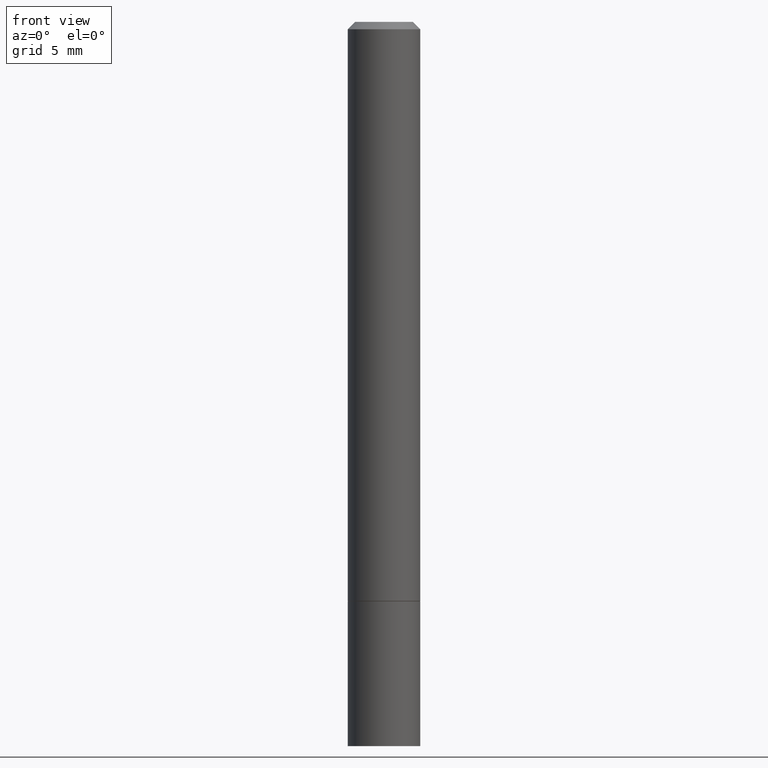
[diagram: clean part render]
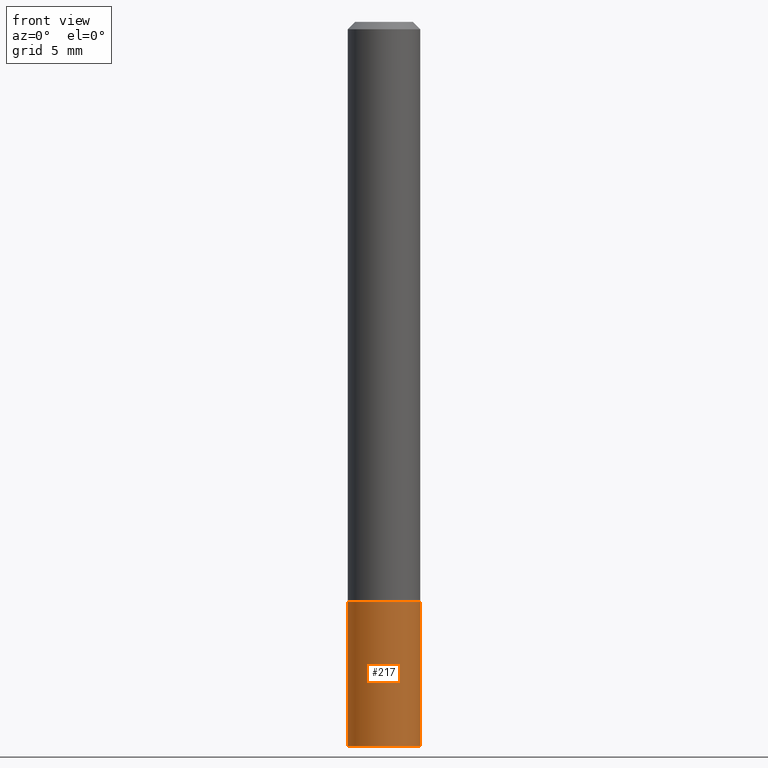
[diagram: same view with one face highlighted and labeled with its STEP entity id]
A machine part, front view. The second image highlights one B-rep face of the part: STEP entity #217.
In plain terms, the highlighted cylindrical surface (edge-blend (fillet) strip) has radius 2.5006 mm, axis along (-0, 0, 1).
Its self-contained STEP definition (entity closure, byte-faithful):
#8 = ORIENTED_EDGE ( 'NONE', *, *, #245, .F. ) ;
#11 = EDGE_CURVE ( 'NONE', #60, #78, #219, .T. ) ;
#40 = AXIS2_PLACEMENT_3D ( 'NONE', #143, #80, #173 ) ;
#44 = AXIS2_PLACEMENT_3D ( 'NONE', #65, #161, #100 ) ;
#59 = DIRECTION ( 'NONE',  ( -2.445468806185136877E-29, 3.491481338843145188E-15, 1.000000000000000000 ) ) ;
#60 = VERTEX_POINT ( 'NONE', #267 ) ;
#65 = CARTESIAN_POINT ( 'NONE',  ( 0.000000000000000000, 0.000000000000000000, 0.000000000000000000 ) ) ;
#71 = FACE_OUTER_BOUND ( 'NONE', #179, .T. ) ;
#76 = VECTOR ( 'NONE', #59, 39.37007874015748143 ) ;
#78 = VERTEX_POINT ( 'NONE', #85 ) ;
#80 = DIRECTION ( 'NONE',  ( -2.445468806185136597E-29, 3.491481338843145583E-15, 1.000000000000000000 ) ) ;
#85 = CARTESIAN_POINT ( 'NONE',  ( 0.09844999999999999585, -7.560453691130944267E-15, -1.968500000000000139 ) ) ;
#89 = VECTOR ( 'NONE', #193, 39.37007874015748143 ) ;
#96 = CARTESIAN_POINT ( 'NONE',  ( 0.09844999999999999585, -6.874726756182129545E-16, 4.800596035771099214E-30 ) ) ;
#100 = DIRECTION ( 'NONE',  ( 1.000000000000000000, -6.982962677686266711E-15, 4.876176775795936353E-29 ) ) ;
#102 = ORIENTED_EDGE ( 'NONE', *, *, #265, .T. ) ;
#106 = VERTEX_POINT ( 'NONE', #346 ) ;
#126 = CARTESIAN_POINT ( 'NONE',  ( -0.09844999999999999585, -5.486153590605640426E-15, -1.574800000000000200 ) ) ;
#143 = CARTESIAN_POINT ( 'NONE',  ( 4.813905344975441835E-29, -6.872981015512731707E-15, -1.968500000000000139 ) ) ;
#148 = CIRCLE ( 'NONE', #248, 0.09844999999999999585 ) ;
#161 = DIRECTION ( 'NONE',  ( -2.445468806185136597E-29, 3.491481338843145583E-15, 1.000000000000000000 ) ) ;
#173 = DIRECTION ( 'NONE',  ( 1.000000000000000000, -6.982962677686265922E-15, 0.000000000000000000 ) ) ;
#179 = EDGE_LOOP ( 'NONE', ( #338, #264, #102, #8 ) ) ;
#193 = DIRECTION ( 'NONE',  ( -2.445468806185136877E-29, 3.491481338843145188E-15, 1.000000000000000000 ) ) ;
#217 = ADVANCED_FACE ( 'NONE', ( #71 ), #280, .T. ) ;
#219 = CIRCLE ( 'NONE', #40, 0.09844999999999999585 ) ;
#245 = EDGE_CURVE ( 'NONE', #313, #106, #148, .T. ) ;
#247 = CARTESIAN_POINT ( 'NONE',  ( 3.851124275980353356E-29, -5.498384812410186155E-15, -1.574800000000000200 ) ) ;
#248 = AXIS2_PLACEMENT_3D ( 'NONE', #247, #349, #352 ) ;
#264 = ORIENTED_EDGE ( 'NONE', *, *, #11, .T. ) ;
#265 = EDGE_CURVE ( 'NONE', #78, #106, #353, .T. ) ;
#267 = CARTESIAN_POINT ( 'NONE',  ( -0.09844999999999999585, -5.486153590605640426E-15, -1.968500000000000139 ) ) ;
#280 = CYLINDRICAL_SURFACE ( 'NONE', #44, 0.09844999999999999585 ) ;
#288 = LINE ( 'NONE', #291, #76 ) ;
#291 = CARTESIAN_POINT ( 'NONE',  ( -0.09844999999999999585, 6.995293233558186035E-16, -4.842691596355954042E-30 ) ) ;
#313 = VERTEX_POINT ( 'NONE', #126 ) ;
#324 = EDGE_CURVE ( 'NONE', #60, #313, #288, .T. ) ;
#338 = ORIENTED_EDGE ( 'NONE', *, *, #324, .F. ) ;
#346 = CARTESIAN_POINT ( 'NONE',  ( 0.09844999999999999585, -6.185857488028398715E-15, -1.574800000000000200 ) ) ;
#349 = DIRECTION ( 'NONE',  ( -2.445468806185136597E-29, 3.491481338843145583E-15, 1.000000000000000000 ) ) ;
#352 = DIRECTION ( 'NONE',  ( 1.000000000000000000, -6.982962677686265922E-15, 0.000000000000000000 ) ) ;
#353 = LINE ( 'NONE', #96, #89 ) ;